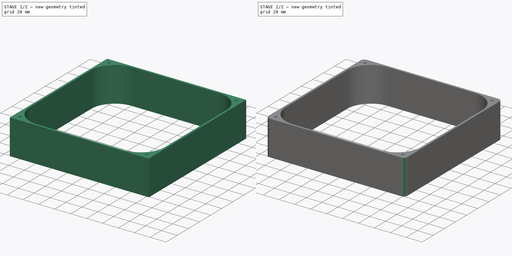
[diagram: build sequence overview — one tinted view per stage of 2, left to right]
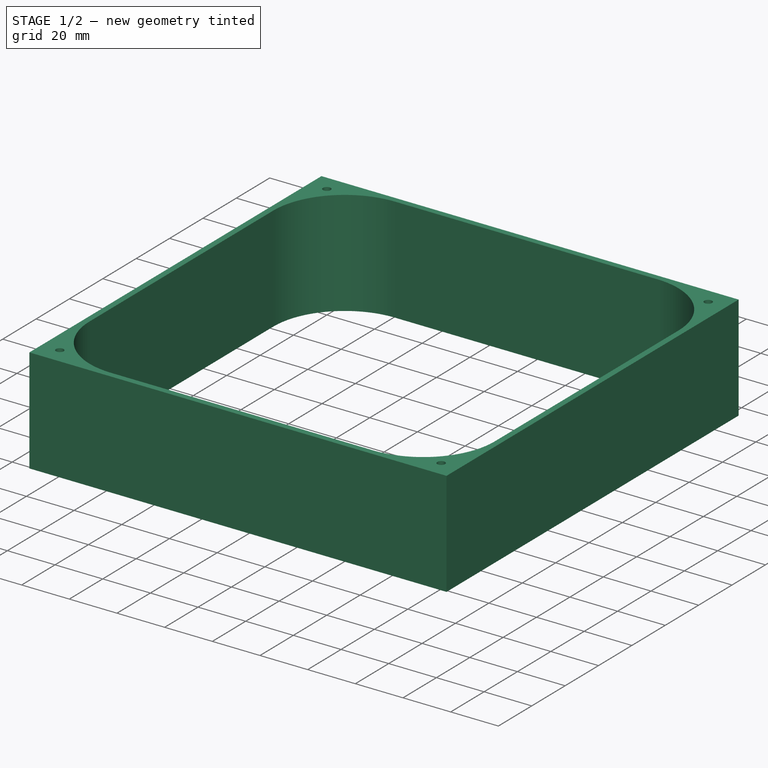
[diagram: stage 1 of 2 — iso view after this stage's code; geometry added in this stage tinted green]
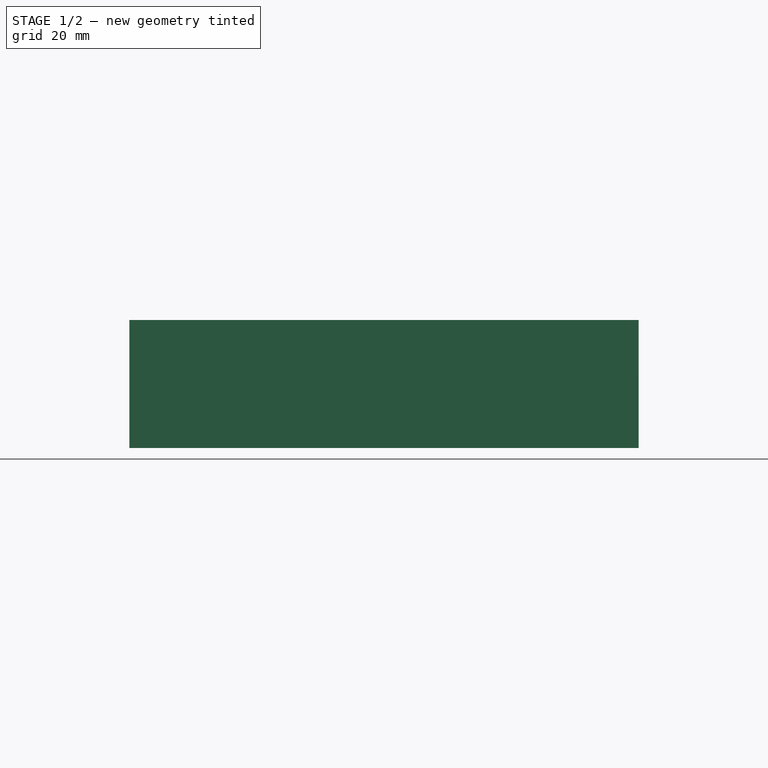
[diagram: stage 1 of 2 — front view after this stage's code; geometry added in this stage tinted green]
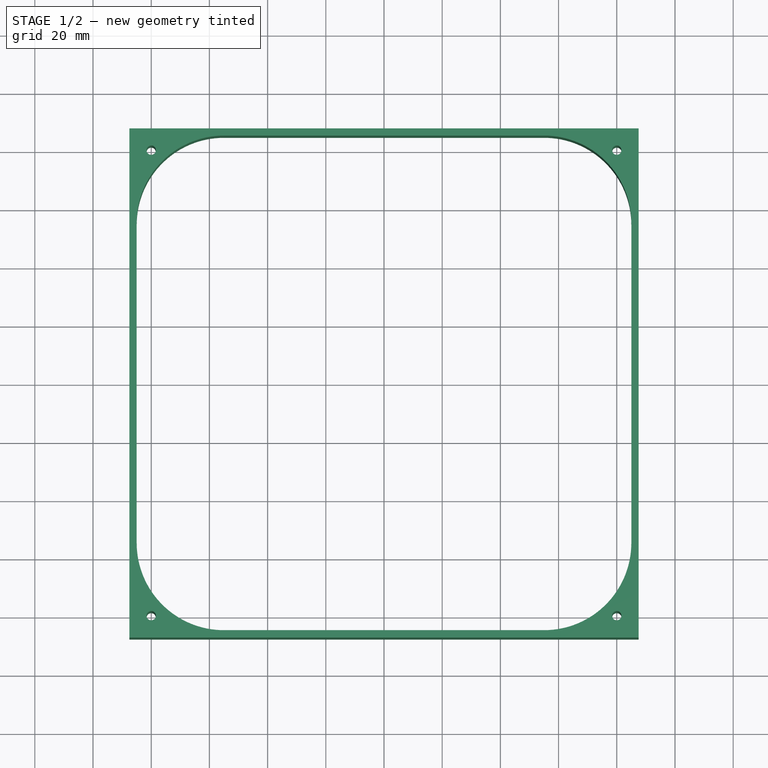
[diagram: stage 1 of 2 — top view after this stage's code; geometry added in this stage tinted green]
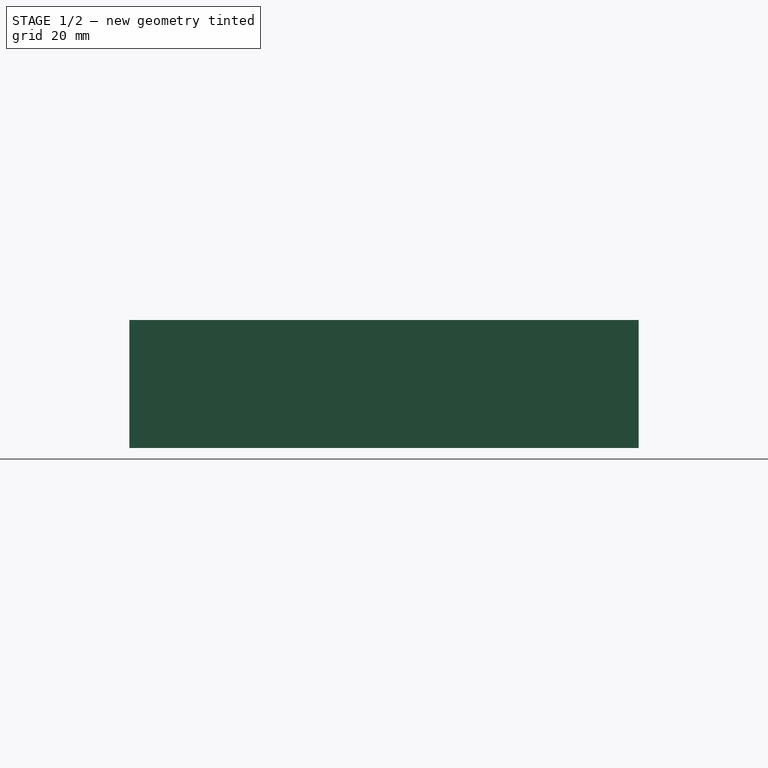
[diagram: stage 1 of 2 — right view after this stage's code; geometry added in this stage tinted green]
FCSTD DOCUMENT  (FreeCAD 0.18R15969 (Git))
Label: c_chamber_v1
License: All rights reserved
LicenseURL: http://en.wikipedia.org/wiki/All_rights_reserved
objects: Sketcher::SketchObject×1, PartDesign::Pad×1, PartDesign::Fillet×1, PartDesign::Body×1
note: 5 computed .brp shape members not serialized (recipe doc carries the construction recipe); baked Part::Feature solids carry a one-line shape summary decoded from their .brp

FEATURE [Sketcher::SketchObject] Sketch
  MapMode = 5
  Support = -> [XY_Plane]
  sketch-geometry (23):
    g0: LineSegment StartX=-87.5 StartY=87.5 StartZ=0 EndX=-87.5 EndY=-87.5 EndZ=0
    g1: LineSegment StartX=-87.5 StartY=-87.5 StartZ=0 EndX=87.5 EndY=-87.5 EndZ=0
    g2: LineSegment StartX=87.5 StartY=-87.5 StartZ=0 EndX=87.5 EndY=87.5 EndZ=0
    g3: LineSegment StartX=87.5 StartY=87.5 StartZ=0 EndX=-87.5 EndY=87.5 EndZ=0
    g4: Circle [constr] CenterX=0 CenterY=0 CenterZ=0 NormalX=0 NormalY=0 NormalZ=1 AngleXU=0 Radius=123.744
    g5: LineSegment StartX=-85 StartY=55 StartZ=0 EndX=-85 EndY=-55 EndZ=0
    g6: LineSegment StartX=-55 StartY=-85 StartZ=0 EndX=55 EndY=-85 EndZ=0
    g7: LineSegment StartX=85 StartY=-55 StartZ=0 EndX=85 EndY=55 EndZ=0
    g8: LineSegment StartX=55 StartY=85 StartZ=0 EndX=-55 EndY=85 EndZ=0
    g9: Circle [constr] CenterX=0 CenterY=0 CenterZ=0 NormalX=0 NormalY=0 NormalZ=1 AngleXU=0 Radius=101.242
    g10: ArcOfCircle CenterX=-55 CenterY=55 CenterZ=0 NormalX=0 NormalY=0 NormalZ=1 AngleXU=0 Radius=30 StartAngle=1.5708 EndAngle=3.14159
    g11: ArcOfCircle CenterX=55 CenterY=55 CenterZ=0 NormalX=0 NormalY=0 NormalZ=1 AngleXU=0 Radius=30 StartAngle=1e-16 EndAngle=1.5708
    g12: ArcOfCircle CenterX=55 CenterY=-55 CenterZ=0 NormalX=0 NormalY=0 NormalZ=1 AngleXU=0 Radius=30 StartAngle=4.71239 EndAngle=6.28319
    g13: ArcOfCircle CenterX=-55 CenterY=-55 CenterZ=0 NormalX=0 NormalY=0 NormalZ=1 AngleXU=0 Radius=30 StartAngle=3.14159 EndAngle=4.71239
    g14: LineSegment [constr] StartX=-80 StartY=80 StartZ=0 EndX=-80 EndY=-80 EndZ=0
    g15: LineSegment [constr] StartX=-80 StartY=-80 StartZ=0 EndX=80 EndY=-80 EndZ=0
    g16: LineSegment [constr] StartX=80 StartY=-80 StartZ=0 EndX=80 EndY=80 EndZ=0
    g17: LineSegment [constr] StartX=80 StartY=80 StartZ=0 EndX=-80 EndY=80 EndZ=0
    g18: Circle [constr] CenterX=0 CenterY=0 CenterZ=0 NormalX=0 NormalY=0 NormalZ=1 AngleXU=0 Radius=113.137
    g19: Circle CenterX=-80 CenterY=80 CenterZ=0 NormalX=0 NormalY=0 NormalZ=1 AngleXU=0 Radius=1.6
    g20: Circle CenterX=80 CenterY=80 CenterZ=0 NormalX=0 NormalY=0 NormalZ=1 AngleXU=0 Radius=1.6
    g21: Circle CenterX=80 CenterY=-80 CenterZ=0 NormalX=0 NormalY=0 NormalZ=1 AngleXU=0 Radius=1.6
    g22: Circle CenterX=-80 CenterY=-80 CenterZ=0 NormalX=0 NormalY=0 NormalZ=1 AngleXU=0 Radius=1.6
  constraints (58):
    c: Coincident(g0,g1)
    c: Coincident(g1,g2)
    c: Coincident(g2,g3)
    c: Coincident(g3,g0)
    c: Equal(g0,g1)
    c: Equal(g0,g2)
    c: Equal(g0,g3)
    c: PointOnObject(g0,g4)
    c: PointOnObject(g1,g4)
    c: PointOnObject(g2,g4)
    c: PointOnObject(g3,g4)
    c: Horizontal(g3)
    c: DistanceX(g3,g3) = 175
    c: Coincident(g4,g-1)
    c: Equal(g5,g6)
    c: Equal(g5,g7)
    c: Equal(g5,g8)
    c: Horizontal(g8)
    c: Coincident(g9,g-1)
    c: Tangent(g5,g10) = -1.5708
    c: Tangent(g8,g10) = -1.5708
    c: Tangent(g8,g11) = -1.5708
    c: Tangent(g7,g11) = -1.5708
    c: Tangent(g7,g12) = -1.5708
    c: Tangent(g6,g12) = -1.5708
    c: Tangent(g6,g13) = -1.5708
    c: Tangent(g5,g13) = -1.5708
    c: PointOnObject(g8,g9)
    c: PointOnObject(g7,g9)
    c: PointOnObject(g7,g9)
    c: PointOnObject(g6,g9)
    c: Vertical(g5)
    c: Vertical(g7)
    c: Horizontal(g6)
    c: Radius(g11) = 30
    c: DistanceX(g5,g7) = 170
    c: Coincident(g14,g15)
    c: Coincident(g15,g16)
    c: Coincident(g16,g17)
    c: Coincident(g17,g14)
    c: Equal(g14,g15)
    c: Equal(g14,g16)
    c: Equal(g14,g17)
    c: PointOnObject(g14,g18)
    c: PointOnObject(g15,g18)
    c: PointOnObject(g16,g18)
    c: PointOnObject(g17,g18)
    c: Horizontal(g17)
    c: Coincident(g-1,g18)
    c: Radius(g21) = 1.6
    c: Equal(g21,g20)
    c: Equal(g21,g19)
    c: Equal(g21,g22)
    c: Coincident(g22,g14)
    c: Coincident(g21,g15)
    c: Coincident(g20,g16)
    c: Coincident(g14,g19)
    c: DistanceX(g17,g17) = 160
FEATURE [PartDesign::Pad] Pad
  Length = 44
  Length2 = 100
  Profile = -> Sketch
  Type = 0
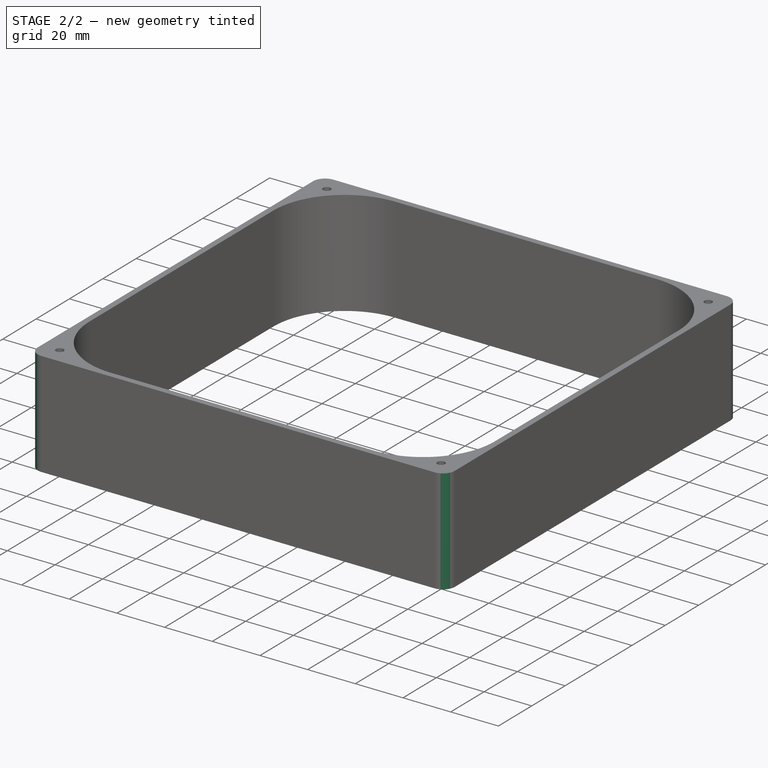
[diagram: stage 2 of 2 — iso view after this stage's code; geometry added in this stage tinted green]
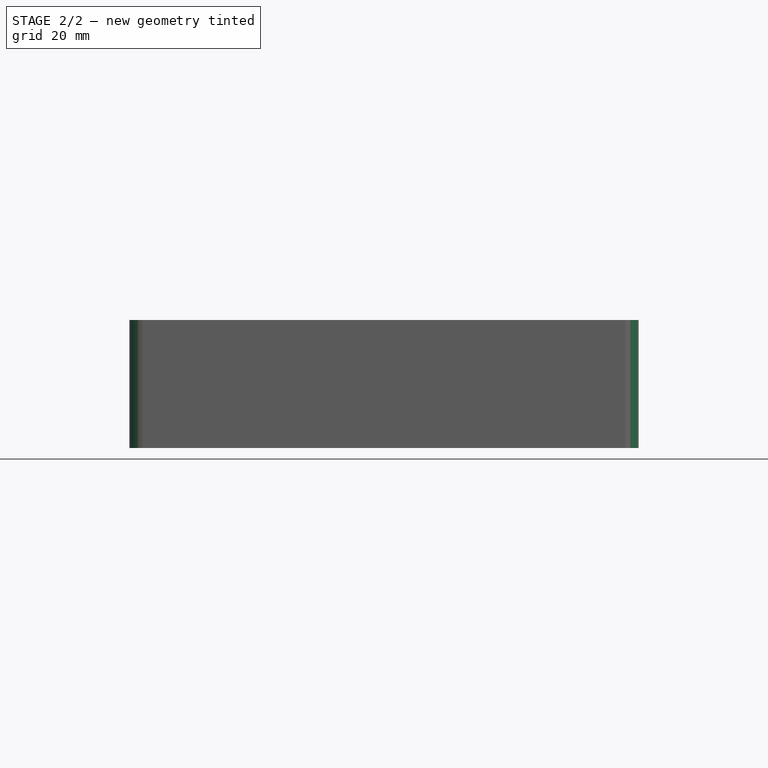
[diagram: stage 2 of 2 — front view after this stage's code; geometry added in this stage tinted green]
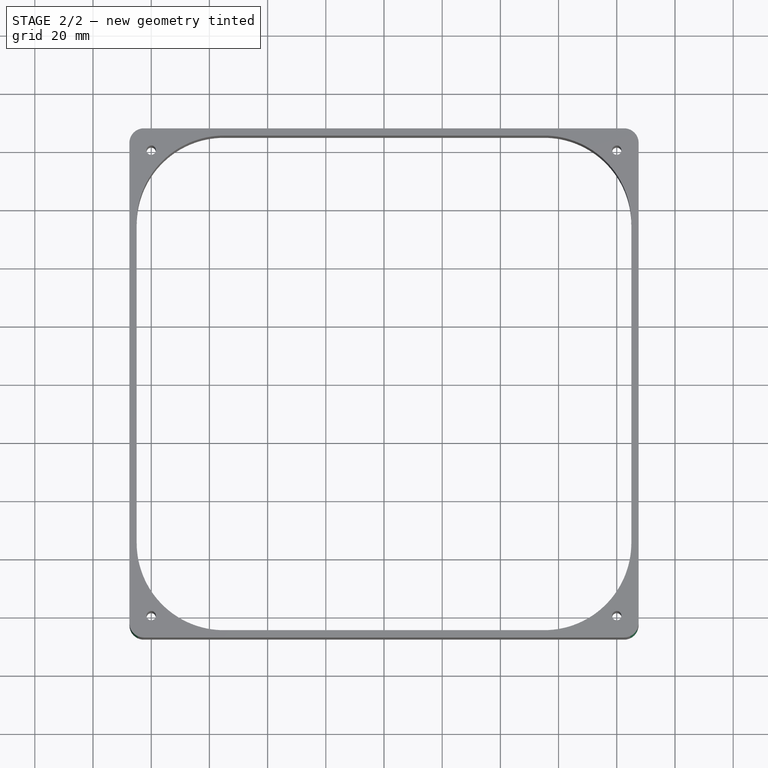
[diagram: stage 2 of 2 — top view after this stage's code; geometry added in this stage tinted green]
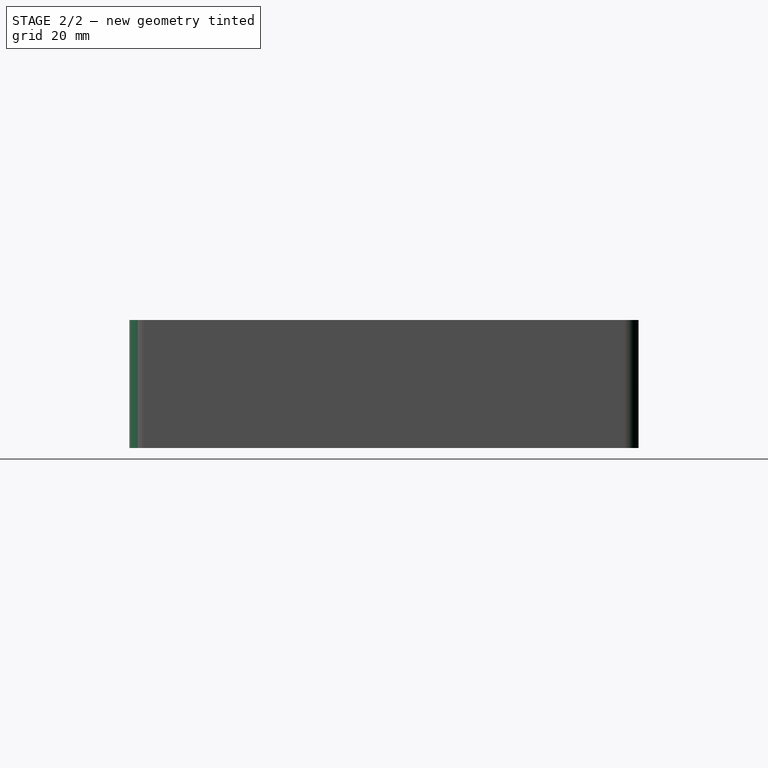
[diagram: stage 2 of 2 — right view after this stage's code; geometry added in this stage tinted green]
FEATURE [PartDesign::Fillet] Fillet
  Base = -> Pad [Edge8,Edge5,Edge2,Edge1]
  BaseFeature = -> Pad
  Radius = 5
FEATURE [PartDesign::Body] Body
  Group = -> [Sketch,Pad,Fillet]
  Origin = -> Origin
  Tip = -> Fillet
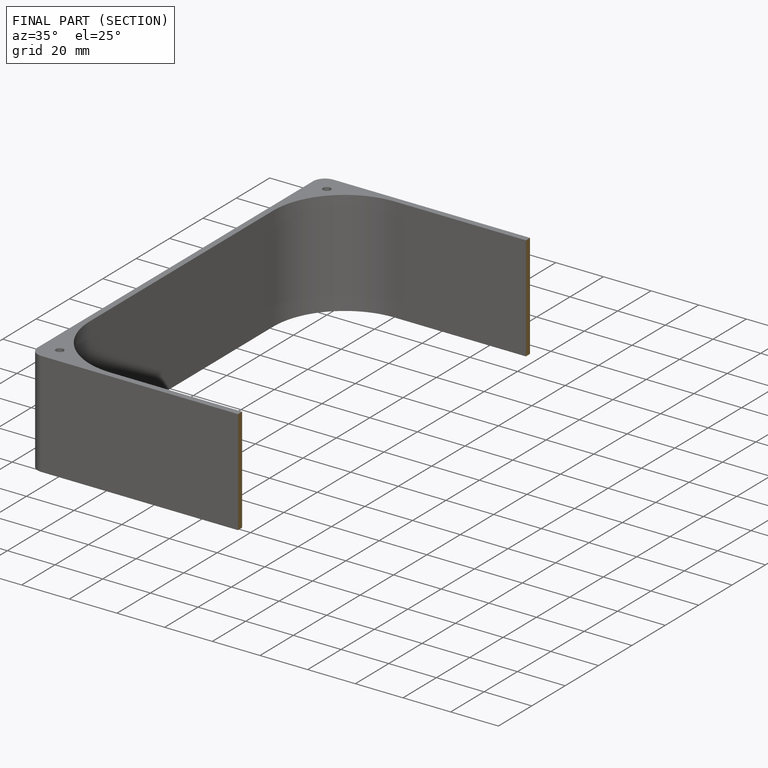
[diagram: finished part — half-section view (interior)]
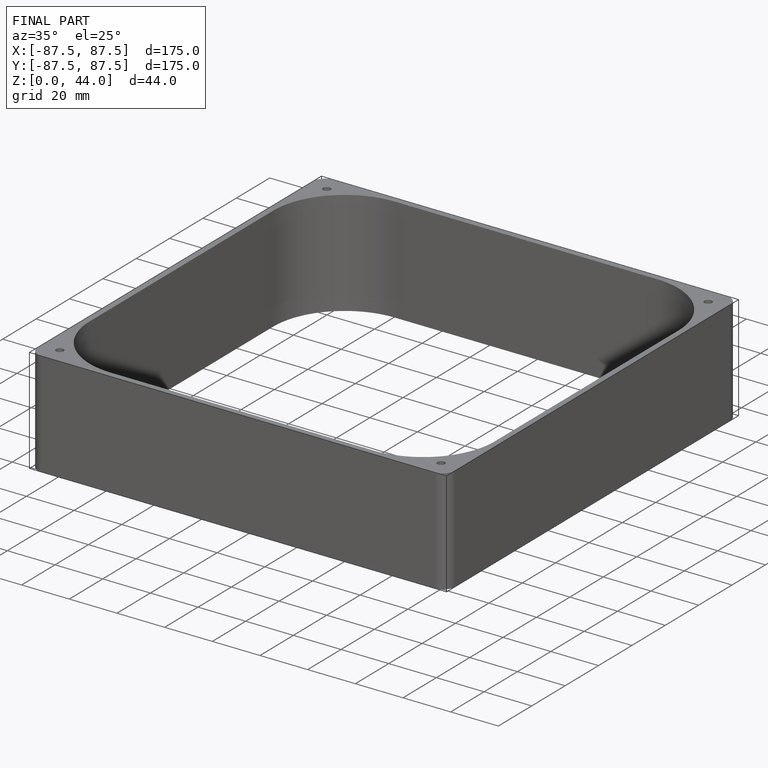
[diagram: finished part — iso view with bounding-box wireframe]
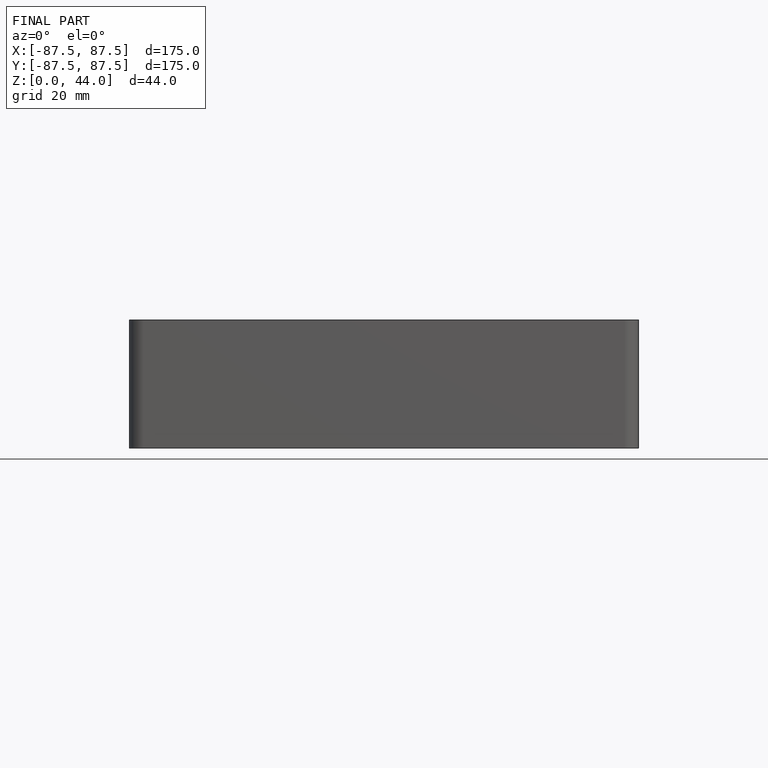
[diagram: finished part — front view with bounding-box wireframe]
